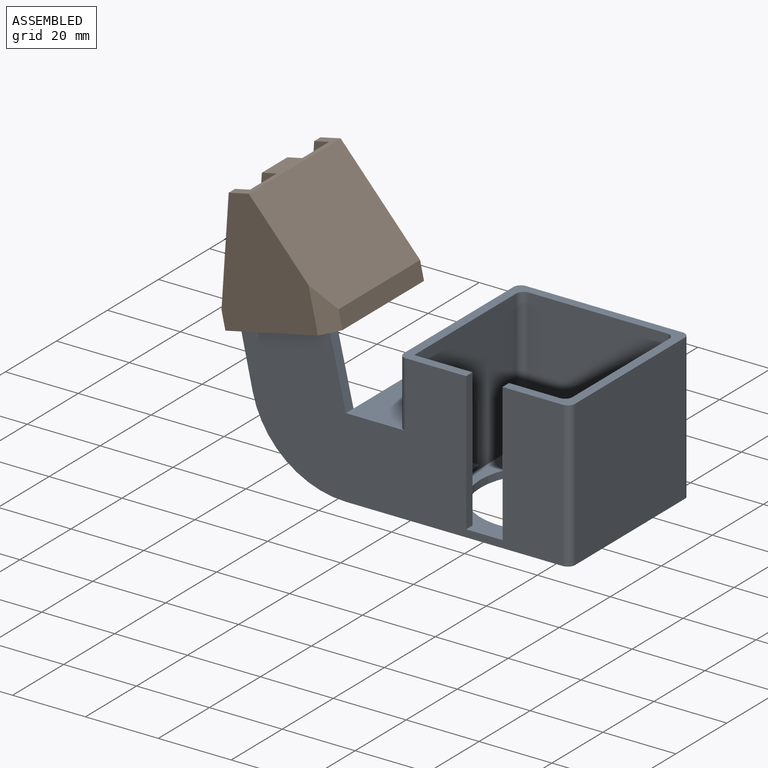
[diagram: assembled view]
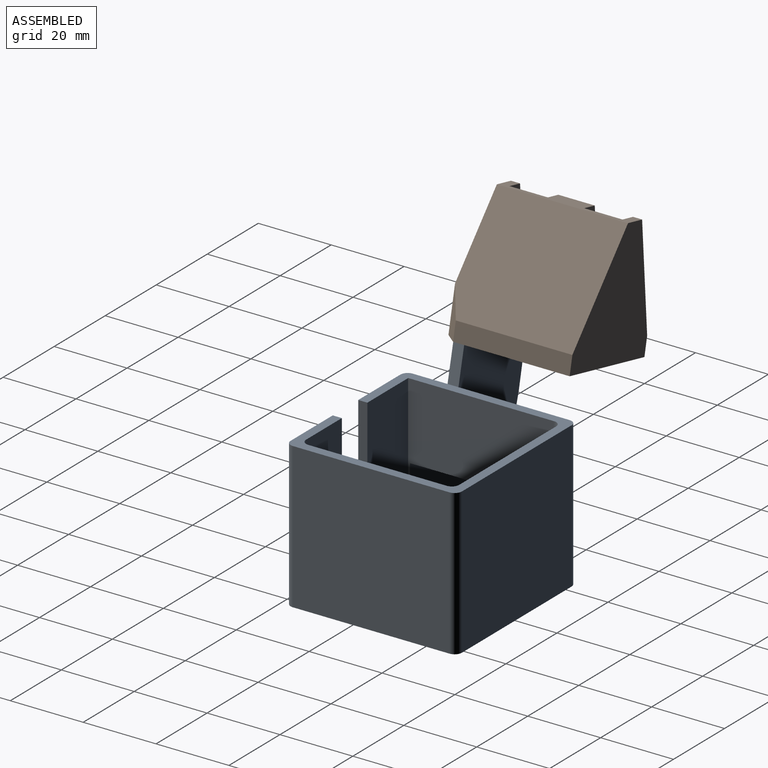
[diagram: assembled view, second angle]
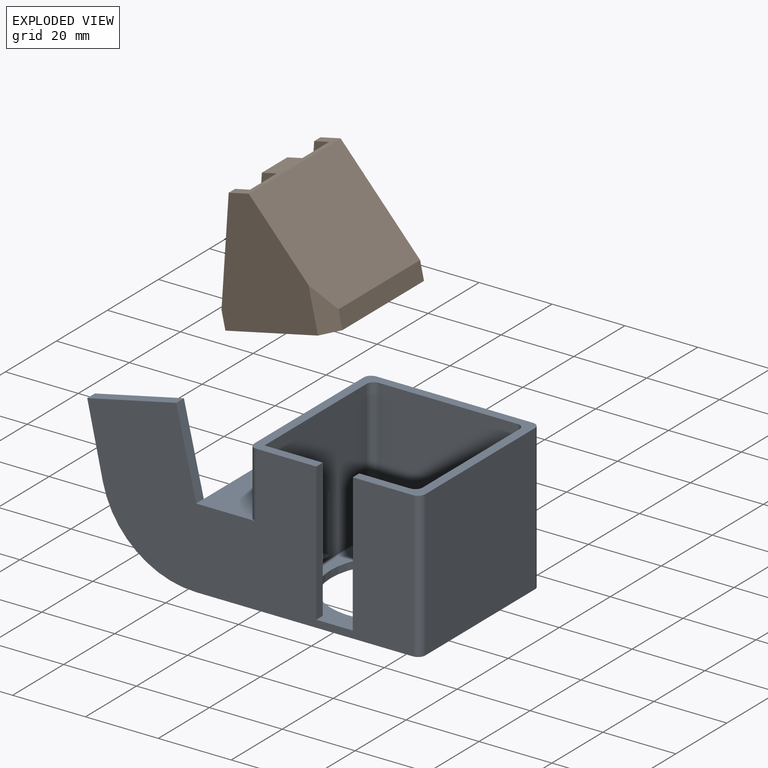
[diagram: exploded view]
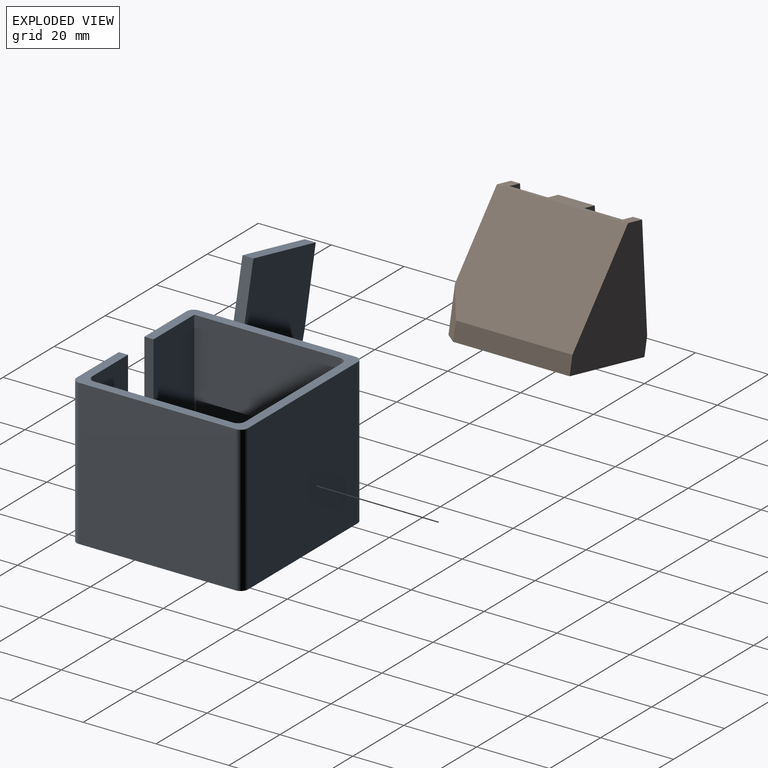
[diagram: exploded view, second angle]
ASSEMBLY  parts=2 mates=2
PART A: 33 faces, bbox 91.4x47x45.5 mm
  f0: cylinder r=2mm len=18mm, axis (0,0,-1), area 56.5mm2, adj f1,f6,f7,f26
  f1: plane 47x47mm, normal (0,0,1), area 419.1mm2, adj f0,f2,f3,f4,f5,f6,f7,f8
  f2: plane 43x40mm, normal (1,0,0), area 1720mm2, adj f1,f3,f8,f9
  f3: cylinder r=2mm len=40mm, axis (0,0,-1), area 125.7mm2, adj f1,f2,f4,f9
  f4: plane 43x40mm, normal (0,1,0), area 1720mm2, adj f1,f3,f5,f9
  f5: cylinder r=2mm len=40mm, axis (0,0,-1), area 125.7mm2, adj f1,f4,f6,f9
  f6: plane 43x40mm, normal (-1,0,0), area 1082mm2, adj f0,f1,f5,f9,f26,f27
  f7: plane 89.38x45.52mm, normal (0,-1,0), area 2669.7mm2, adj f0,f1,f8,f9,f10,f19,f20,f26
  f8: cylinder r=2mm len=40mm, axis (0,0,-1), area 125.7mm2, adj f1,f2,f7,f9
  f9: plane 61.5x47mm, normal (0,0,-1), area 1693.8mm2, adj f2,f3,f4,f5,f6,f7,f8,f21
  f10: plane 38x2.5mm, normal (-1,0,0), area 95mm2, adj f1,f7,f11,f20
  f11: plane 38x14mm, normal (0,1,0), area 532mm2, adj f1,f10,f12,f20
  f12: cylinder r=2mm len=38mm, axis (0,0,1), area 119.4mm2, adj f1,f11,f13,f20
  f13: plane 38x38mm, normal (-1,0,0), area 1444mm2, adj f1,f12,f14,f20
  f14: cylinder r=2mm len=38mm, axis (0,0,1), area 119.4mm2, adj f1,f13,f15,f20
  f15: plane 38x38mm, normal (0,-1,0), area 1444mm2, adj f1,f14,f16,f20
  f16: cylinder r=2mm len=38mm, axis (0,0,1), area 119.4mm2, adj f1,f15,f17,f20
  f17: plane 40x38mm, normal (1,0,0), area 1120mm2, adj f1,f16,f18,f20,f22,f23,f24,f25
  f18: plane 38x16mm, normal (0,1,0), area 608mm2, adj f1,f17,f19,f20
  f19: plane 38x2.5mm, normal (1,0,0), area 95mm2, adj f1,f7,f18,f20
  f20: plane 44.5x42mm, normal (0,0,1), area 824.3mm2, adj f7,f10,f11,f12,f13,f14,f15,f16
  f21: cylinder r=17.5mm len=35mm, axis (0,0,1), area 219.9mm2, adj f9,f20
  f22: plane 46.88x45.52mm, normal (0,1,0), area 1238.7mm2, adj f17,f23,f25,f28,f29,f30,f31,f32
  f23: plane 25x17mm, normal (0,0,-1), area 425mm2, adj f17,f22,f24,f28
  f24: plane 17x16mm, normal (0,-1,0), area 272mm2, adj f17,f23,f25,f28
  f25: plane 25x17mm, normal (0,0,1), area 425mm2, adj f17,f22,f24,f28
  f26: plane 31x16.5mm, normal (0,0,1), area 450.4mm2, adj f0,f6,f7,f27,f28,f29
  f27: plane 22x14.5mm, normal (0,1,0), area 319mm2, adj f6,f9,f26,f28
  f28: plane 28x22mm, normal (-1,0,0), area 216mm2, adj f9,f22,f23,f24,f25,f26,f27
  f29: plane 23.52x5.46mm, normal (0.97,0,0.23), area 72.4mm2, adj f7,f22,f26,f30
  f30: plane 24.42x5.35mm, normal (-0.21,0,0.98), area 75mm2, adj f7,f22,f29,f31
  f31: plane 19.57x4.29mm, normal (-0.98,0,-0.21), area 60.1mm2, adj f7,f22,f30,f32
  f32: cylinder r=26.21mm len=25.6mm, axis (0,-1,0), area 106.5mm2, adj f7,f9,f22,f31
PART B: 23 faces, bbox 36x30x33.5 mm
  f0: plane 36x28.46mm, normal (0,-0.96,0.28), area 1012.2mm2, adj f1,f3,f4,f6,f9,f12,f18,f19
  f1: plane 36x5.65mm, normal (0,0,1), area 115.4mm2, adj f0,f3,f6,f8,f9,f12,f17,f18
  f2: plane 36x30mm, normal (0,0,-1), area 300.2mm2, adj f3,f4,f5,f6,f7,f9,f10,f11
  f3: plane 33.46x26mm, normal (1,0,0), area 623.2mm2, adj f0,f1,f2,f4,f7,f8
  f4: plane 36x5mm, normal (0,-1,0), area 180mm2, adj f0,f2,f3,f6
  f5: plane 32x5mm, normal (0,1,0), area 160mm2, adj f2,f6,f7,f8
  f6: plane 33.46x30mm, normal (-1,0,0), area 657.3mm2, adj f0,f1,f2,f4,f5,f8
  f7: plane 12.07x4mm, normal (0.71,0.71,0), area 48.3mm2, adj f2,f3,f5,f8
  f8: plane 36x28.46mm, normal (0,0.87,0.49), area 1160.9mm2, adj f1,f3,f5,f6,f7
  f9: plane 33.46x22.46mm, normal (-1,0,0), area 479.6mm2, adj f0,f1,f2,f10,f13,f14,f15,f20
  f10: plane 31x4.64mm, normal (0,1,0), area 144mm2, adj f2,f9,f12,f14
  f11: plane 28.46x4.34mm, normal (0,-1,0), area 123.6mm2, adj f2,f12,f13,f15
  f12: plane 33.46x25mm, normal (1,0,0), area 496.3mm2, adj f0,f1,f2,f10,f11,f14,f15,f17
  f13: plane 8.83x2.54mm, normal (-0.71,-0.71,0), area 23.6mm2, adj f2,f9,f11,f15
  f14: plane 31x26.32mm, normal (0,0.96,-0.28), area 653.3mm2, adj f9,f10,f12,f16,f18,f19,f21,f22
  f15: plane 31x26.62mm, normal (0,-0.87,-0.49), area 941.5mm2, adj f9,f11,f12,f13,f16,f17,f20
  f16: plane 10x2.31mm, normal (0,0,-1), area 23.1mm2, adj f14,f15,f18,f19
  f17: plane 10.5x2.5mm, normal (0,-1,0), area 26.2mm2, adj f1,f12,f15,f18
  f18: plane 11.47x4.92mm, normal (-1,0,0), area 23.1mm2, adj f0,f1,f14,f16,f17,f22
  f19: plane 11.47x4.92mm, normal (1,0,0), area 23.1mm2, adj f0,f1,f14,f16,f20,f21
  f20: plane 10.5x2.5mm, normal (0,-1,0), area 26.2mm2, adj f1,f9,f15,f19
  f21: plane 10.5x8.97mm, normal (0,1,0), area 94.2mm2, adj f0,f9,f14,f19
  f22: plane 10.5x8.97mm, normal (0,1,0), area 94.2mm2, adj f0,f12,f14,f18
PLACE A t=(-17.27,7.39,53.03)mm
PLACE B rot(axis=(0.11,-0.11,-0.99),90.7deg) t=(-71.94,-0.61,91.28)mm
MATE planar A.f27 <-> B.f12  axis (0,1,0) through (-48.02,14.89,64.03)mm
MATE planar A.f31 <-> B.f10  axis (-0.98,0,-0.21) through (-83.01,-14.61,83.41)mm
